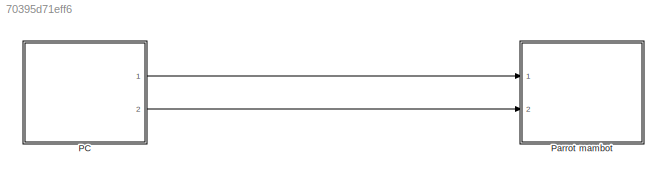
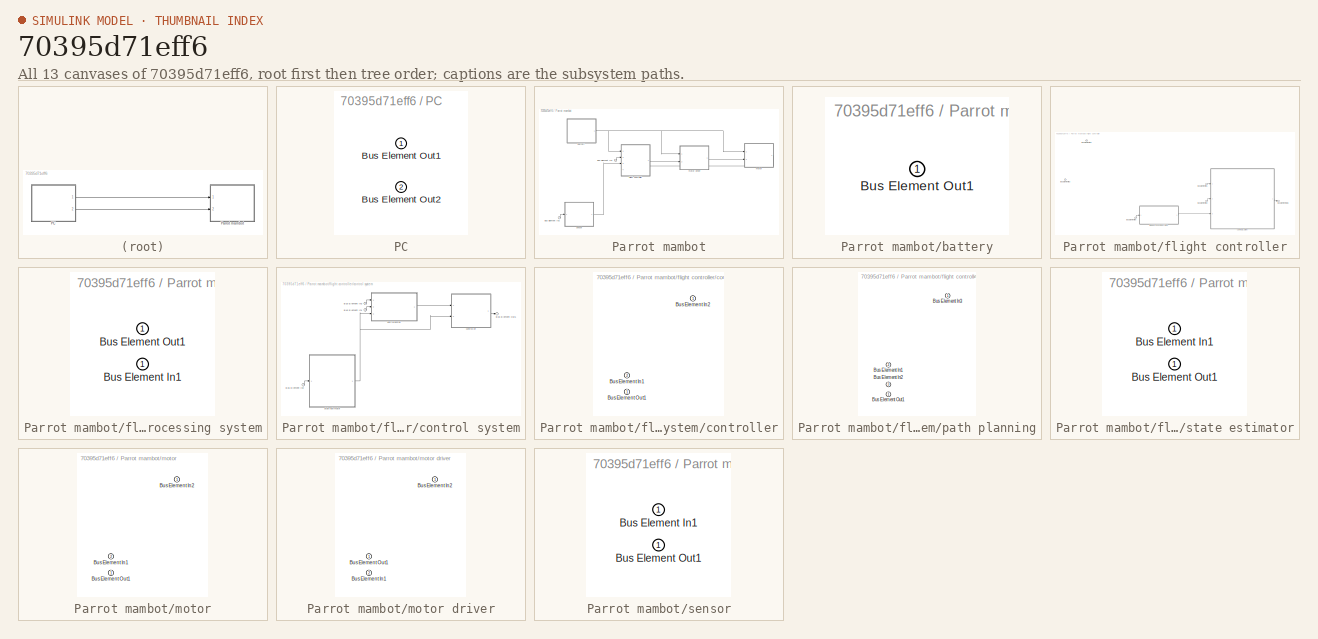
[diagram: thumbnail index - all 13 canvases of the model, root first then tree order]
MODEL slx_70395d71eff6
KIND model
CONFIG AbsTol = auto
CONFIG EnableMultiTasking = off
CONFIG FixedStep = auto
CONFIG MaxStep = auto
CONFIG MinStep = auto
CONFIG RelTol = 1e-3
CONFIG SampleTimeConstraint = Unconstrained
CONFIG SolverName = VariableStepAuto
CONFIG StartTime = 0.0
CONFIG StopTime = 10.0
BLOCK [SubSystem] PC
  PortSchema = {"entries":[{"content":{"headerSize":26,"margin":15,"minimumSpacing":25,"sides":[{"content":{"connectorIds":[]},"type":"ConnectorPlacement.EquallySpacedRectSide","uuid":"57f66509-e8d0-4a15-b15f-6e72d08a95fa"},{"content":{"connectorIds":["Out1","Out2"],"side":"RIGHT"},"type":"ConnectorPlacement.EquallySpacedRectSide","uuid":"4d6ddc62-5d39-4aa3-bc43-22ec2045b1a1"},{"content":{"connectorIds":[],"side...<+290ch>
  Ports = [0, 2]
  RequestExecContextInheritance = off
BLOCK [Outport] PC/Bus Element Out1
BLOCK [Outport] PC/Bus Element Out2
  Port = 2
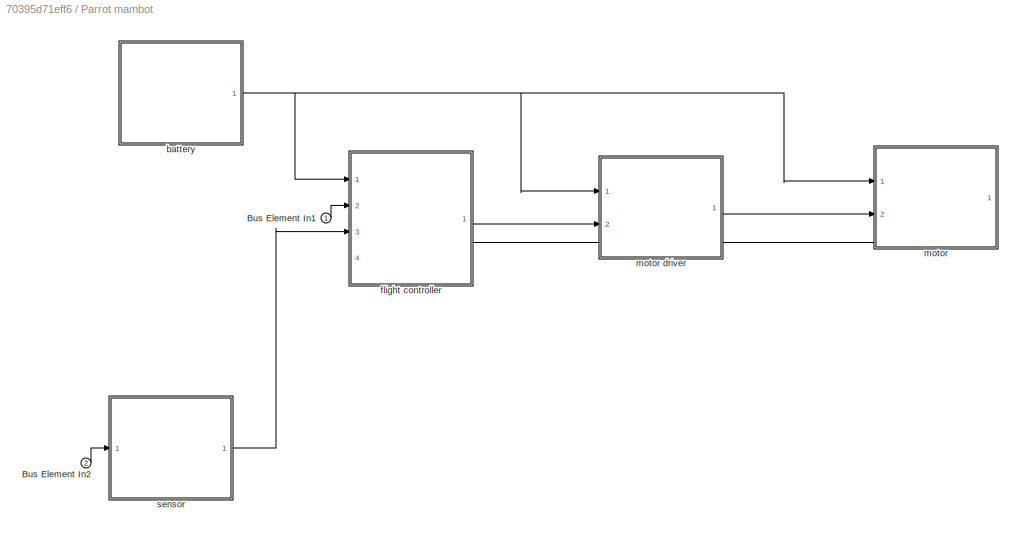
BLOCK [SubSystem] Parrot mambot
  PortSchema = {"entries":[{"content":{"headerSize":26,"margin":15,"minimumSpacing":25,"sides":[{"content":{"connectorIds":["In1","In2"]},"type":"ConnectorPlacement.EquallySpacedRectSide","uuid":"57f66509-e8d0-4a15-b15f-6e72d08a95fa"},{"content":{"connectorIds":[],"side":"RIGHT"},"type":"ConnectorPlacement.EquallySpacedRectSide","uuid":"4d6ddc62-5d39-4aa3-bc43-22ec2045b1a1"},{"content":{"connectorIds":[],"side":...<+288ch>
  Ports = [2]
  RequestExecContextInheritance = off
BLOCK [Inport] Parrot mambot/Bus Element In1
BLOCK [Inport] Parrot mambot/Bus Element In2
  Port = 2
BLOCK [SubSystem] Parrot mambot/battery
  PortSchema = {"entries":[{"content":{"headerSize":26,"margin":15,"minimumSpacing":25,"sides":[{"content":{"connectorIds":[]},"type":"ConnectorPlacement.EquallySpacedRectSide","uuid":"57f66509-e8d0-4a15-b15f-6e72d08a95fa"},{"content":{"connectorIds":["Out1"],"side":"RIGHT"},"type":"ConnectorPlacement.EquallySpacedRectSide","uuid":"4d6ddc62-5d39-4aa3-bc43-22ec2045b1a1"},{"content":{"connectorIds":[],"side":"TOP"...<+283ch>
  Ports = [0, 1]
  RequestExecContextInheritance = off
BLOCK [Outport] Parrot mambot/battery/Bus Element Out1
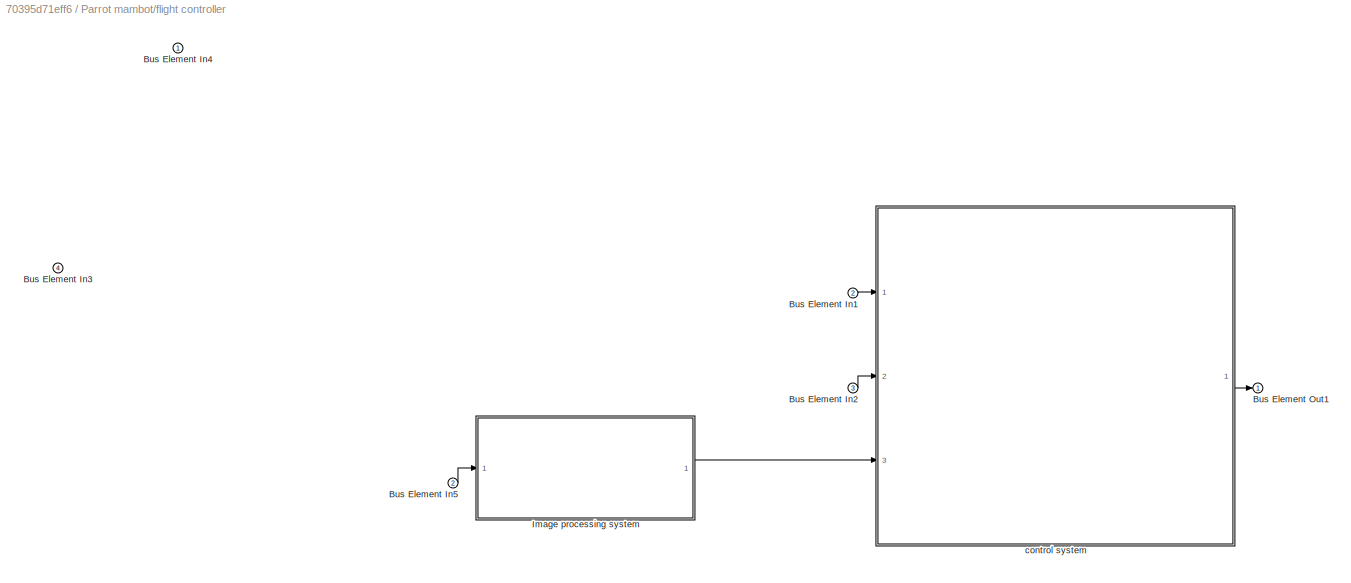
BLOCK [SubSystem] Parrot mambot/flight controller
  PortSchema = {"entries":[{"content":{"headerSize":26,"margin":15,"minimumSpacing":25,"sides":[{"content":{"connectorIds":["In1","In2","In3","In4"]},"type":"ConnectorPlacement.EquallySpacedRectSide","uuid":"57f66509-e8d0-4a15-b15f-6e72d08a95fa"},{"content":{"connectorIds":["Out1"],"side":"RIGHT"},"type":"ConnectorPlacement.EquallySpacedRectSide","uuid":"4d6ddc62-5d39-4aa3-bc43-22ec2045b1a1"},{"content":{"connec...<+306ch>
  Ports = [4, 1]
  RequestExecContextInheritance = off
BLOCK [Inport] Parrot mambot/flight controller/Bus Element In1
  Port = 2
BLOCK [Inport] Parrot mambot/flight controller/Bus Element In2
  Port = 3
BLOCK [Inport] Parrot mambot/flight controller/Bus Element In3
  Port = 4
BLOCK [Inport] Parrot mambot/flight controller/Bus Element In4
BLOCK [Inport] Parrot mambot/flight controller/Bus Element In5
  Port = 2
BLOCK [Outport] Parrot mambot/flight controller/Bus Element Out1
BLOCK [SubSystem] Parrot mambot/flight controller/Image processing system
  PortSchema = {"entries":[{"content":{"headerSize":26,"margin":15,"minimumSpacing":25,"sides":[{"content":{"connectorIds":["In1"]},"type":"ConnectorPlacement.EquallySpacedRectSide","uuid":"57f66509-e8d0-4a15-b15f-6e72d08a95fa"},{"content":{"connectorIds":["Out1"],"side":"RIGHT"},"type":"ConnectorPlacement.EquallySpacedRectSide","uuid":"4d6ddc62-5d39-4aa3-bc43-22ec2045b1a1"},{"content":{"connectorIds":[],"side":...<+288ch>  <repeated x3 — deduplicated; at blocks: Image processing system, state estimator, sensor>
  Ports = [1, 1]
  RequestExecContextInheritance = off
BLOCK [Inport] Parrot mambot/flight controller/Image processing system/Bus Element In1
BLOCK [Outport] Parrot mambot/flight controller/Image processing system/Bus Element Out1
BLOCK [SubSystem] Parrot mambot/flight controller/control system
  PortSchema = {"entries":[{"content":{"headerSize":26,"margin":15,"minimumSpacing":25,"sides":[{"content":{"connectorIds":["In1","In2","In3"]},"type":"ConnectorPlacement.EquallySpacedRectSide","uuid":"57f66509-e8d0-4a15-b15f-6e72d08a95fa"},{"content":{"connectorIds":["Out1"],"side":"RIGHT"},"type":"ConnectorPlacement.EquallySpacedRectSide","uuid":"4d6ddc62-5d39-4aa3-bc43-22ec2045b1a1"},{"content":{"connectorIds...<+300ch>
  Ports = [3, 1]
  RequestExecContextInheritance = off
BLOCK [Inport] Parrot mambot/flight controller/control system/Bus Element In1
  Port = 3
BLOCK [Inport] Parrot mambot/flight controller/control system/Bus Element In2
  Port = 2
BLOCK [Inport] Parrot mambot/flight controller/control system/Bus Element In3
BLOCK [Outport] Parrot mambot/flight controller/control system/Bus Element Out1
BLOCK [SubSystem] Parrot mambot/flight controller/control system/controller
  PortSchema = {"entries":[{"content":{"headerSize":26,"margin":15,"minimumSpacing":25,"sides":[{"content":{"connectorIds":["In1","In2"]},"type":"ConnectorPlacement.EquallySpacedRectSide","uuid":"57f66509-e8d0-4a15-b15f-6e72d08a95fa"},{"content":{"connectorIds":["Out1"],"side":"RIGHT"},"type":"ConnectorPlacement.EquallySpacedRectSide","uuid":"4d6ddc62-5d39-4aa3-bc43-22ec2045b1a1"},{"content":{"connectorIds":[],"...<+294ch>
  Ports = [2, 1]
  RequestExecContextInheritance = off
BLOCK [Inport] Parrot mambot/flight controller/control system/controller/Bus Element In1
  Port = 2
BLOCK [Inport] Parrot mambot/flight controller/control system/controller/Bus Element In2
BLOCK [Outport] Parrot mambot/flight controller/control system/controller/Bus Element Out1
BLOCK [SubSystem] Parrot mambot/flight controller/control system/path planning
  PortSchema = {"entries":[{"content":{"headerSize":26,"margin":15,"minimumSpacing":25,"sides":[{"content":{"connectorIds":["In1","In2","In3"]},"type":"ConnectorPlacement.EquallySpacedRectSide","uuid":"57f66509-e8d0-4a15-b15f-6e72d08a95fa"},{"content":{"connectorIds":["Out1"],"side":"RIGHT"},"type":"ConnectorPlacement.EquallySpacedRectSide","uuid":"4d6ddc62-5d39-4aa3-bc43-22ec2045b1a1"},{"content":{"connectorIds...<+300ch>
  Ports = [3, 1]
  RequestExecContextInheritance = off
BLOCK [Inport] Parrot mambot/flight controller/control system/path planning/Bus Element In1
  Port = 2
BLOCK [Inport] Parrot mambot/flight controller/control system/path planning/Bus Element In2
  Port = 3
BLOCK [Inport] Parrot mambot/flight controller/control system/path planning/Bus Element In3
BLOCK [Outport] Parrot mambot/flight controller/control system/path planning/Bus Element Out1
BLOCK [SubSystem] Parrot mambot/flight controller/control system/state estimator
  Ports = [1, 1]
  RequestExecContextInheritance = off
BLOCK [Inport] Parrot mambot/flight controller/control system/state estimator/Bus Element In1
BLOCK [Outport] Parrot mambot/flight controller/control system/state estimator/Bus Element Out1
BLOCK [SubSystem] Parrot mambot/motor
  PortSchema = {"entries":[{"content":{"headerSize":26,"margin":15,"minimumSpacing":25,"sides":[{"content":{"connectorIds":["In1","In2"]},"type":"ConnectorPlacement.EquallySpacedRectSide","uuid":"57f66509-e8d0-4a15-b15f-6e72d08a95fa"},{"content":{"connectorIds":[],"side":"RIGHT"},"type":"ConnectorPlacement.EquallySpacedRectSide","uuid":"4d6ddc62-5d39-4aa3-bc43-22ec2045b1a1"},{"content":{"connectorIds":[],"side":...<+438ch>
  Ports = [2, 1]
  RequestExecContextInheritance = off
BLOCK [SubSystem] Parrot mambot/motor driver
  PortSchema = {"entries":[{"content":{"headerSize":26,"margin":15,"minimumSpacing":25,"sides":[{"content":{"connectorIds":["In1","In2"]},"type":"ConnectorPlacement.EquallySpacedRectSide","uuid":"57f66509-e8d0-4a15-b15f-6e72d08a95fa"},{"content":{"connectorIds":["Out1"],"side":"RIGHT"},"type":"ConnectorPlacement.EquallySpacedRectSide","uuid":"4d6ddc62-5d39-4aa3-bc43-22ec2045b1a1"},{"content":{"connectorIds":[],"...<+294ch>
  Ports = [2, 1]
  RequestExecContextInheritance = off
BLOCK [Inport] Parrot mambot/motor driver/Bus Element In1
  Port = 2
BLOCK [Inport] Parrot mambot/motor driver/Bus Element In2
BLOCK [Outport] Parrot mambot/motor driver/Bus Element Out1
BLOCK [Inport] Parrot mambot/motor/Bus Element In1
  Port = 2
BLOCK [Inport] Parrot mambot/motor/Bus Element In2
BLOCK [Outport] Parrot mambot/motor/Bus Element Out1
BLOCK [SubSystem] Parrot mambot/sensor
  Ports = [1, 1]
  RequestExecContextInheritance = off
BLOCK [Inport] Parrot mambot/sensor/Bus Element In1
BLOCK [Outport] Parrot mambot/sensor/Bus Element Out1
LINE PC:1 -> Parrot mambot:1
LINE PC:2 -> Parrot mambot:2
LINE Parrot mambot/Bus Element In1:1 -> Parrot mambot/flight controller:2
LINE Parrot mambot/Bus Element In2:1 -> Parrot mambot/sensor:1
NET Parrot mambot/battery:1 -> Parrot mambot/flight controller:1, Parrot mambot/motor driver:1, Parrot mambot/motor:1
LINE Parrot mambot/flight controller/Bus Element In1:1 -> Parrot mambot/flight controller/control system:1
LINE Parrot mambot/flight controller/Bus Element In2:1 -> Parrot mambot/flight controller/control system:2
LINE Parrot mambot/flight controller/Bus Element In5:1 -> Parrot mambot/flight controller/Image processing system:1
LINE Parrot mambot/flight controller/Image processing system:1 -> Parrot mambot/flight controller/control system:3
LINE Parrot mambot/flight controller/control system/Bus Element In1:1 -> Parrot mambot/flight controller/control system/path planning:2
LINE Parrot mambot/flight controller/control system/Bus Element In2:1 -> Parrot mambot/flight controller/control system/state estimator:1
LINE Parrot mambot/flight controller/control system/Bus Element In3:1 -> Parrot mambot/flight controller/control system/path planning:1
LINE Parrot mambot/flight controller/control system/controller:1 -> Parrot mambot/flight controller/control system/Bus Element Out1:1
LINE Parrot mambot/flight controller/control system/path planning:1 -> Parrot mambot/flight controller/control system/controller:1
NET Parrot mambot/flight controller/control system/state estimator:1 -> Parrot mambot/flight controller/control system/controller:2, Parrot mambot/flight controller/control system/path planning:3
LINE Parrot mambot/flight controller/control system:1 -> Parrot mambot/flight controller/Bus Element Out1:1
LINE Parrot mambot/flight controller:1 -> Parrot mambot/motor driver:2
LINE Parrot mambot/motor driver:1 -> Parrot mambot/motor:2
LINE Parrot mambot/motor:1 -> Parrot mambot/flight controller:4
LINE Parrot mambot/sensor:1 -> Parrot mambot/flight controller:3
note: NET lines group one-source signal fan-out (src -> all destinations, sorted); 1:1 wires keep LINE
